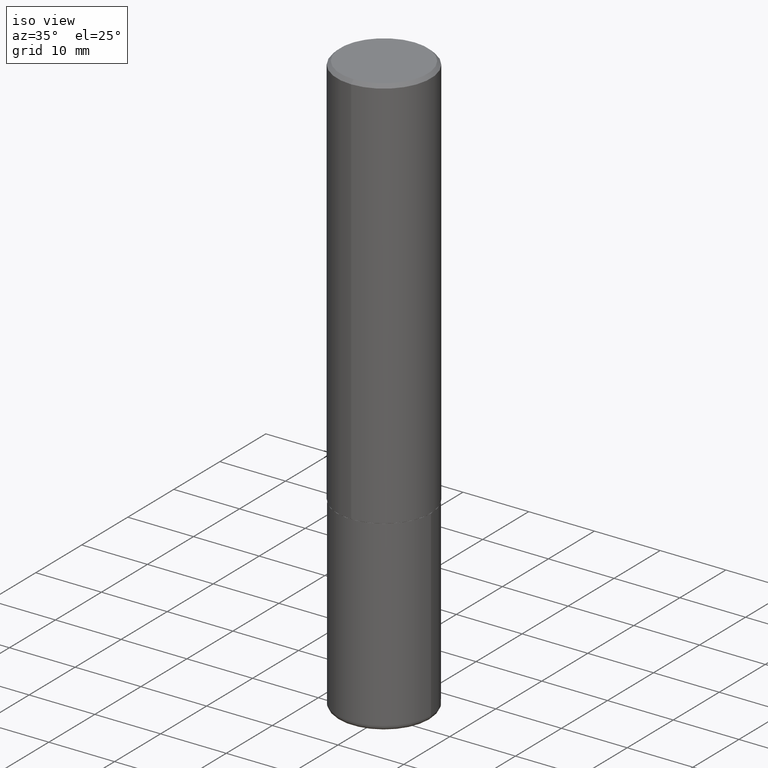
[diagram: clean part render]
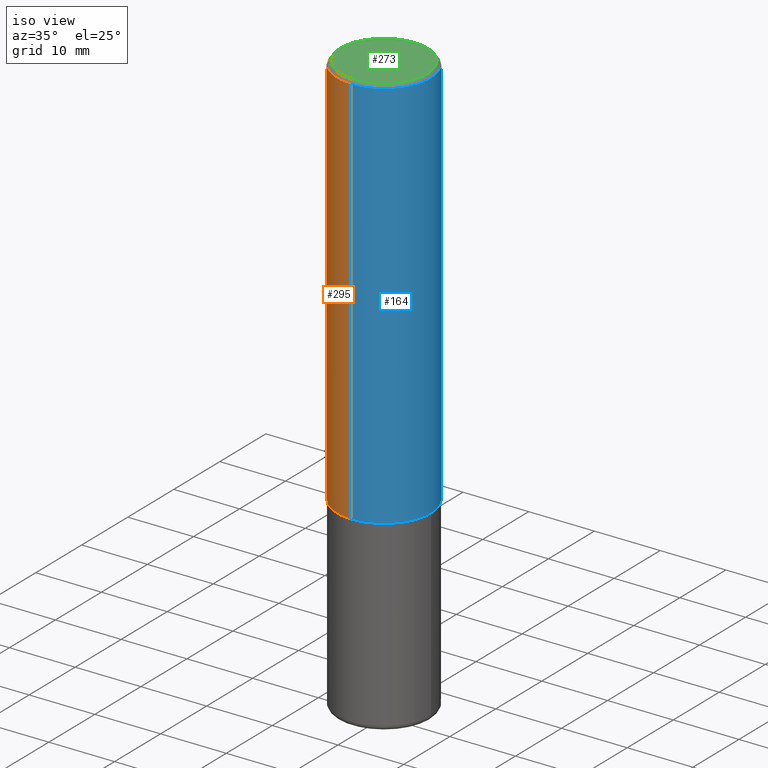
[diagram: same view with three faces highlighted in distinct colors, each labeled with its STEP entity id]
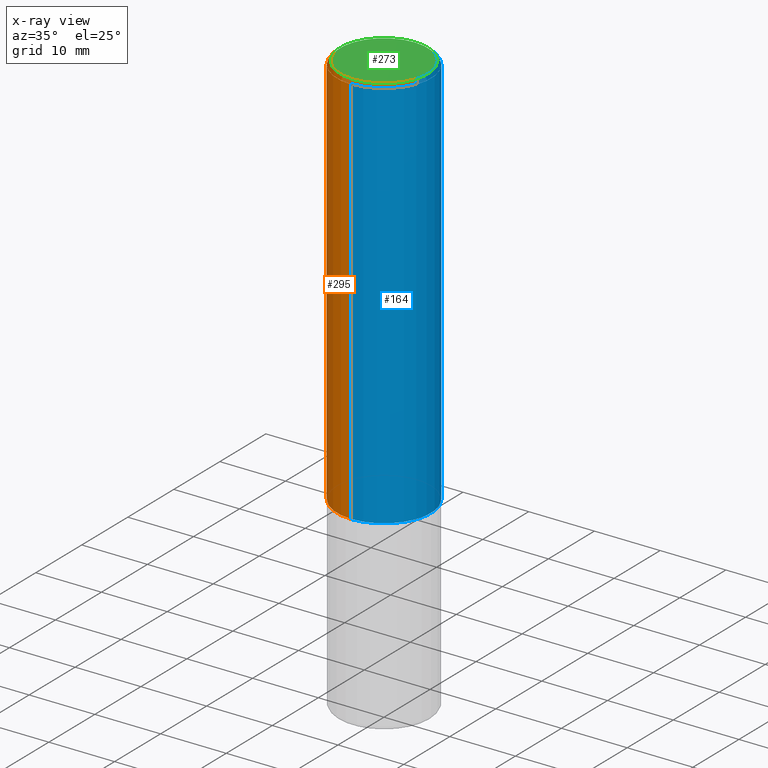
[diagram: x-ray of the same camera — body ghosted, the three highlighted faces saturated]
A machine part, iso view with three faces highlighted in distinct colors.
The next image is the same camera in x-ray (body ghosted, the three faces saturated) — at least one of them is partly hidden behind the body in this view.
Their STEP definitions:

[orange] entity #295 — the highlighted cylindrical surface (partial cylindrical patch) has radius 7.1438 mm, axis along (-0, 0, 1).
#13 = CARTESIAN_POINT ( 'NONE',  ( -1.929515061873242463E-15, -0.2812500000000000555, -0.01999999999999908101 ) ) ;
#25 = DIRECTION ( 'NONE',  ( -6.982962677686265133E-15, -1.000000000000000000, 3.885294924322503744E-15 ) ) ;
#50 = DIRECTION ( 'NONE',  ( -6.982962677686265133E-15, -1.000000000000000000, 3.490678759099360641E-15 ) ) ;
#54 = VECTOR ( 'NONE', #403, 39.37007874015748143 ) ;
#77 = AXIS2_PLACEMENT_3D ( 'NONE', #148, #152, #50 ) ;
#94 = CIRCLE ( 'NONE', #411, 0.2812500000000002776 ) ;
#95 = DIRECTION ( 'NONE',  ( -2.446029244624808043E-29, 3.490678759099361035E-15, 1.000000000000000000 ) ) ;
#100 = CIRCLE ( 'NONE', #138, 0.2812500000000000000 ) ;
#123 = VERTEX_POINT ( 'NONE', #342 ) ;
#135 = LINE ( 'NONE', #238, #54 ) ;
#137 = LINE ( 'NONE', #171, #395 ) ;
#138 = AXIS2_PLACEMENT_3D ( 'NONE', #158, #95, #298 ) ;
#148 = CARTESIAN_POINT ( 'NONE',  ( 0.000000000000000000, 0.000000000000000000, 0.000000000000000000 ) ) ;
#152 = DIRECTION ( 'NONE',  ( -2.446029244624808043E-29, 3.490678759099361035E-15, 1.000000000000000000 ) ) ;
#158 = CARTESIAN_POINT ( 'NONE',  ( 4.892058489249632096E-31, -6.981357518198745391E-17, -0.02000000000000006287 ) ) ;
#159 = EDGE_LOOP ( 'NONE', ( #325, #334, #195, #389 ) ) ;
#171 = CARTESIAN_POINT ( 'NONE',  ( 1.998401444325282562E-15, 0.2812500000000001665, -9.817534009966957842E-16 ) ) ;
#172 = CYLINDRICAL_SURFACE ( 'NONE', #77, 0.2812500000000001665 ) ;
#178 = FACE_OUTER_BOUND ( 'NONE', #159, .T. ) ;
#185 = EDGE_CURVE ( 'NONE', #237, #194, #100, .T. ) ;
#194 = VERTEX_POINT ( 'NONE', #13 ) ;
#195 = ORIENTED_EDGE ( 'NONE', *, *, #249, .T. ) ;
#212 = DIRECTION ( 'NONE',  ( -2.446029244624808043E-29, 3.490678759099361035E-15, 1.000000000000000000 ) ) ;
#237 = VERTEX_POINT ( 'NONE', #330 ) ;
#238 = CARTESIAN_POINT ( 'NONE',  ( -1.963958253099263301E-15, -0.2812500000000001665, 9.817534009966957842E-16 ) ) ;
#249 = EDGE_CURVE ( 'NONE', #293, #194, #135, .T. ) ;
#276 = CARTESIAN_POINT ( 'NONE',  ( 5.806873426739292794E-29, -8.286871374101881312E-15, -2.373999999999999222 ) ) ;
#283 = EDGE_CURVE ( 'NONE', #123, #237, #137, .T. ) ;
#293 = VERTEX_POINT ( 'NONE', #316 ) ;
#295 = ADVANCED_FACE ( 'NONE', ( #178 ), #172, .T. ) ;
#298 = DIRECTION ( 'NONE',  ( -6.982962677686266711E-15, -1.000000000000000000, 3.490694658571002804E-15 ) ) ;
#301 = DIRECTION ( 'NONE',  ( -2.446029244624808323E-29, 3.490678759099361035E-15, 1.000000000000000000 ) ) ;
#306 = EDGE_CURVE ( 'NONE', #123, #293, #94, .T. ) ;
#316 = CARTESIAN_POINT ( 'NONE',  ( -1.963958253099206109E-15, -0.2812500000000085487, -2.373999999999998334 ) ) ;
#325 = ORIENTED_EDGE ( 'NONE', *, *, #283, .F. ) ;
#330 = CARTESIAN_POINT ( 'NONE',  ( 1.963958253099262907E-15, 0.2812499999999999445, -0.02000000000000104472 ) ) ;
#334 = ORIENTED_EDGE ( 'NONE', *, *, #306, .T. ) ;
#342 = CARTESIAN_POINT ( 'NONE',  ( 1.998401444325312144E-15, 0.2812499999999920064, -2.374000000000000554 ) ) ;
#389 = ORIENTED_EDGE ( 'NONE', *, *, #185, .F. ) ;
#395 = VECTOR ( 'NONE', #301, 39.37007874015748143 ) ;
#403 = DIRECTION ( 'NONE',  ( -2.446029244624808323E-29, 3.490678759099361035E-15, 1.000000000000000000 ) ) ;
#411 = AXIS2_PLACEMENT_3D ( 'NONE', #276, #212, #25 ) ;

[blue] entity #164 — the highlighted cylindrical surface (partial cylindrical patch) has radius 7.1438 mm, axis along (-0, 0, 1).
#3 = CIRCLE ( 'NONE', #380, 0.2812500000000002776 ) ;
#13 = CARTESIAN_POINT ( 'NONE',  ( -1.929515061873242463E-15, -0.2812500000000000555, -0.01999999999999908101 ) ) ;
#17 = DIRECTION ( 'NONE',  ( -6.982962677686265133E-15, -1.000000000000000000, 3.490678759099360641E-15 ) ) ;
#18 = CARTESIAN_POINT ( 'NONE',  ( 4.892058489249632096E-31, -6.981357518198745391E-17, -0.02000000000000006287 ) ) ;
#54 = VECTOR ( 'NONE', #403, 39.37007874015748143 ) ;
#62 = EDGE_CURVE ( 'NONE', #293, #123, #3, .T. ) ;
#86 = EDGE_LOOP ( 'NONE', ( #188, #333, #353, #326 ) ) ;
#90 = CARTESIAN_POINT ( 'NONE',  ( 0.000000000000000000, 0.000000000000000000, 0.000000000000000000 ) ) ;
#123 = VERTEX_POINT ( 'NONE', #342 ) ;
#126 = DIRECTION ( 'NONE',  ( -2.446029244624808043E-29, 3.490678759099361035E-15, 1.000000000000000000 ) ) ;
#135 = LINE ( 'NONE', #238, #54 ) ;
#137 = LINE ( 'NONE', #171, #395 ) ;
#139 = CARTESIAN_POINT ( 'NONE',  ( 5.806873426739292794E-29, -8.286871374101881312E-15, -2.373999999999999222 ) ) ;
#151 = CIRCLE ( 'NONE', #248, 0.2812500000000000000 ) ;
#164 = ADVANCED_FACE ( 'NONE', ( #375 ), #202, .T. ) ;
#171 = CARTESIAN_POINT ( 'NONE',  ( 1.998401444325282562E-15, 0.2812500000000001665, -9.817534009966957842E-16 ) ) ;
#173 = DIRECTION ( 'NONE',  ( -2.446029244624808043E-29, 3.490678759099361035E-15, 1.000000000000000000 ) ) ;
#188 = ORIENTED_EDGE ( 'NONE', *, *, #62, .T. ) ;
#194 = VERTEX_POINT ( 'NONE', #13 ) ;
#202 = CYLINDRICAL_SURFACE ( 'NONE', #268, 0.2812500000000001665 ) ;
#206 = DIRECTION ( 'NONE',  ( -2.446029244624808043E-29, 3.490678759099361035E-15, 1.000000000000000000 ) ) ;
#222 = DIRECTION ( 'NONE',  ( -6.982962677686266711E-15, -1.000000000000000000, 3.490694658571002804E-15 ) ) ;
#237 = VERTEX_POINT ( 'NONE', #330 ) ;
#238 = CARTESIAN_POINT ( 'NONE',  ( -1.963958253099263301E-15, -0.2812500000000001665, 9.817534009966957842E-16 ) ) ;
#248 = AXIS2_PLACEMENT_3D ( 'NONE', #18, #126, #222 ) ;
#249 = EDGE_CURVE ( 'NONE', #293, #194, #135, .T. ) ;
#268 = AXIS2_PLACEMENT_3D ( 'NONE', #90, #173, #17 ) ;
#271 = DIRECTION ( 'NONE',  ( -6.982962677686265133E-15, -1.000000000000000000, 3.885294924322503744E-15 ) ) ;
#283 = EDGE_CURVE ( 'NONE', #123, #237, #137, .T. ) ;
#293 = VERTEX_POINT ( 'NONE', #316 ) ;
#301 = DIRECTION ( 'NONE',  ( -2.446029244624808323E-29, 3.490678759099361035E-15, 1.000000000000000000 ) ) ;
#316 = CARTESIAN_POINT ( 'NONE',  ( -1.963958253099206109E-15, -0.2812500000000085487, -2.373999999999998334 ) ) ;
#326 = ORIENTED_EDGE ( 'NONE', *, *, #249, .F. ) ;
#330 = CARTESIAN_POINT ( 'NONE',  ( 1.963958253099262907E-15, 0.2812499999999999445, -0.02000000000000104472 ) ) ;
#333 = ORIENTED_EDGE ( 'NONE', *, *, #283, .T. ) ;
#342 = CARTESIAN_POINT ( 'NONE',  ( 1.998401444325312144E-15, 0.2812499999999920064, -2.374000000000000554 ) ) ;
#353 = ORIENTED_EDGE ( 'NONE', *, *, #354, .F. ) ;
#354 = EDGE_CURVE ( 'NONE', #194, #237, #151, .T. ) ;
#375 = FACE_OUTER_BOUND ( 'NONE', #86, .T. ) ;
#380 = AXIS2_PLACEMENT_3D ( 'NONE', #139, #206, #271 ) ;
#395 = VECTOR ( 'NONE', #301, 39.37007874015748143 ) ;
#403 = DIRECTION ( 'NONE',  ( -2.446029244624808323E-29, 3.490678759099361035E-15, 1.000000000000000000 ) ) ;

[green] entity #273 — the highlighted planar face has unit normal (0, -0, -1).
#8 = CARTESIAN_POINT ( 'NONE',  ( 1.824298999545535127E-15, 0.2612499999999997602, -8.138688755214296184E-16 ) ) ;
#16 = CARTESIAN_POINT ( 'NONE',  ( -1.860910081895526737E-15, -0.2612499999999997602, 1.108081726401262636E-15 ) ) ;
#32 = ORIENTED_EDGE ( 'NONE', *, *, #392, .T. ) ;
#47 = DIRECTION ( 'NONE',  ( 6.982962677686265922E-15, 1.000000000000000000, -3.490678759099361035E-15 ) ) ;
#53 = DIRECTION ( 'NONE',  ( -2.446029244624808043E-29, 3.490678759099361035E-15, 1.000000000000000000 ) ) ;
#58 = CARTESIAN_POINT ( 'NONE',  ( -4.797688249310059522E-45, 6.846683661468670826E-31, 1.961419005865552790E-16 ) ) ;
#59 = VERTEX_POINT ( 'NONE', #346 ) ;
#84 = CIRCLE ( 'NONE', #279, 0.2612499999999997602 ) ;
#127 = ORIENTED_EDGE ( 'NONE', *, *, #234, .T. ) ;
#160 = DIRECTION ( 'NONE',  ( -6.982962677686265133E-15, -1.000000000000000000, 3.490678759099360641E-15 ) ) ;
#196 = CARTESIAN_POINT ( 'NONE',  ( -4.797688249310059522E-45, 6.846683661468670826E-31, 1.961419005865552790E-16 ) ) ;
#200 = PLANE ( 'NONE',  #305 ) ;
#234 = EDGE_CURVE ( 'NONE', #287, #59, #84, .T. ) ;
#253 = CIRCLE ( 'NONE', #376, 0.2612499999999997602 ) ;
#259 = EDGE_LOOP ( 'NONE', ( #32, #127 ) ) ;
#273 = ADVANCED_FACE ( 'NONE', ( #364 ), #200, .F. ) ;
#279 = AXIS2_PLACEMENT_3D ( 'NONE', #196, #341, #160 ) ;
#282 = DIRECTION ( 'NONE',  ( -6.982962677686265133E-15, -1.000000000000000000, 3.490678759099360641E-15 ) ) ;
#287 = VERTEX_POINT ( 'NONE', #16 ) ;
#305 = AXIS2_PLACEMENT_3D ( 'NONE', #8, #370, #47 ) ;
#341 = DIRECTION ( 'NONE',  ( -2.446029244624808043E-29, 3.490678759099361035E-15, 1.000000000000000000 ) ) ;
#346 = CARTESIAN_POINT ( 'NONE',  ( 1.894128626322399214E-15, 0.2612499999999997602, -7.157979252281520775E-16 ) ) ;
#364 = FACE_OUTER_BOUND ( 'NONE', #259, .T. ) ;
#370 = DIRECTION ( 'NONE',  ( 2.446029244624807763E-29, -3.490678759099361035E-15, -1.000000000000000000 ) ) ;
#376 = AXIS2_PLACEMENT_3D ( 'NONE', #58, #53, #282 ) ;
#392 = EDGE_CURVE ( 'NONE', #59, #287, #253, .T. ) ;